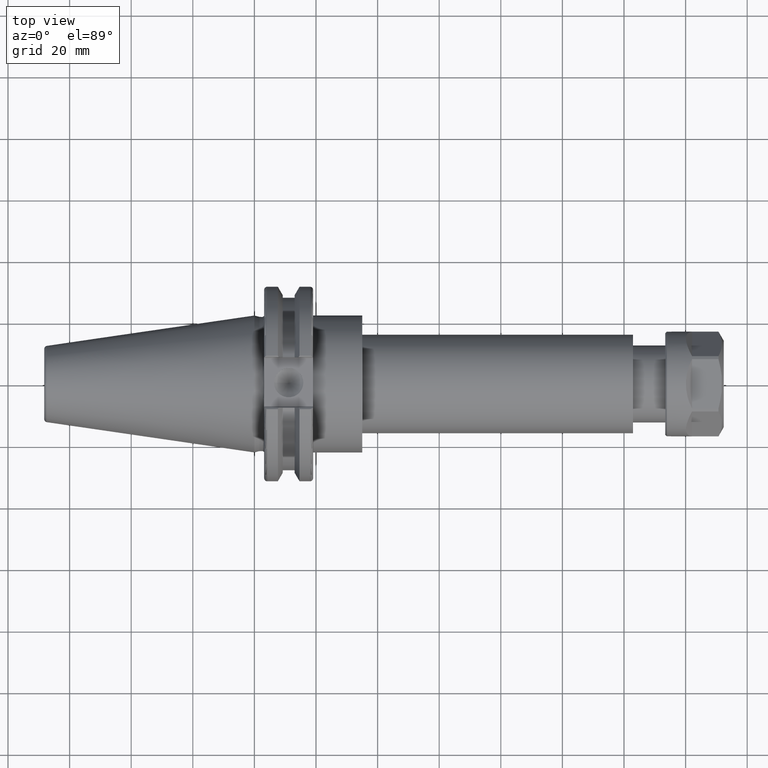
[diagram: clean part render]
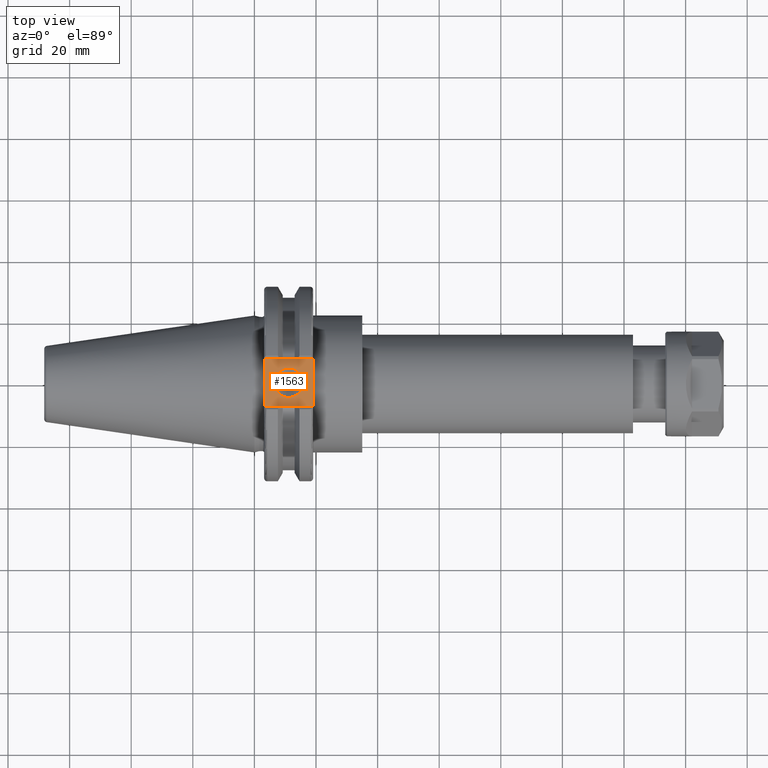
[diagram: same view with one face highlighted and labeled with its STEP entity id]
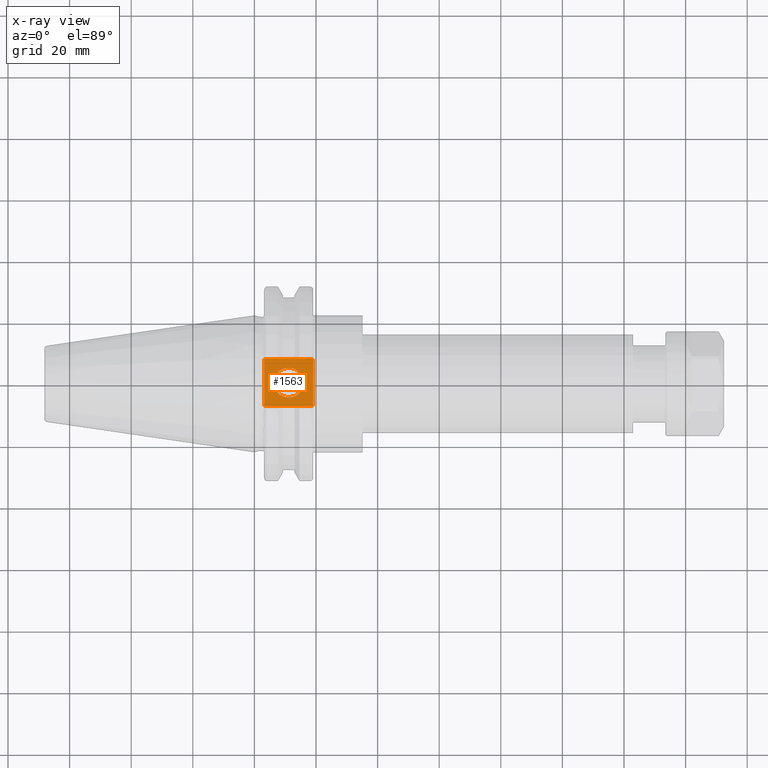
[diagram: x-ray of the same camera — body ghosted, the highlighted face saturated]
A machine part, top view. The second image highlights one B-rep face of the part: STEP entity #1563.
The next image is the same camera in x-ray: the body ghosted, the highlighted face saturated — about 0% of this face is hidden behind the body in this view.
In plain terms, the highlighted planar face has unit normal (0, 0, 1).
Its self-contained STEP definition (entity closure, byte-faithful):
#121=FACE_BOUND('',#350,.T.);
#158=PLANE('',#1778);
#250=FACE_OUTER_BOUND('',#349,.T.);
#349=EDGE_LOOP('',(#1329,#1330,#1331,#1332));
#350=EDGE_LOOP('',(#1333));
#404=LINE('',#2385,#504);
#423=LINE('',#2482,#523);
#448=LINE('',#2670,#548);
#450=LINE('',#2673,#550);
#504=VECTOR('',#1937,10.);
#523=VECTOR('',#1974,10.);
#548=VECTOR('',#2053,10.);
#550=VECTOR('',#2057,10.);
#633=CIRCLE('',#1761,4.7625);
#691=VERTEX_POINT('',#2382);
#692=VERTEX_POINT('',#2384);
#717=VERTEX_POINT('',#2479);
#718=VERTEX_POINT('',#2481);
#768=VERTEX_POINT('',#2730);
#848=EDGE_CURVE('',#691,#692,#404,.T.);
#879=EDGE_CURVE('',#717,#718,#423,.T.);
#933=EDGE_CURVE('',#718,#691,#448,.T.);
#935=EDGE_CURVE('',#692,#717,#450,.T.);
#957=EDGE_CURVE('',#768,#768,#633,.T.);
#1329=ORIENTED_EDGE('',*,*,#933,.F.);
#1330=ORIENTED_EDGE('',*,*,#879,.F.);
#1331=ORIENTED_EDGE('',*,*,#935,.F.);
#1332=ORIENTED_EDGE('',*,*,#848,.F.);
#1333=ORIENTED_EDGE('',*,*,#957,.T.);
#1563=ADVANCED_FACE('',(#250,#121),#158,.T.);
#1761=AXIS2_PLACEMENT_3D('',#2731,#2100,#2101);
#1778=AXIS2_PLACEMENT_3D('',#2749,#2135,#2136);
#1937=DIRECTION('',(0.,1.,0.));
#1974=DIRECTION('',(0.,-1.,0.));
#2053=DIRECTION('',(-1.,1.31581988103722E-16,0.));
#2057=DIRECTION('',(1.,0.,0.));
#2100=DIRECTION('center_axis',(0.,0.,-1.));
#2101=DIRECTION('ref_axis',(1.,0.,0.));
#2135=DIRECTION('center_axis',(0.,0.,1.));
#2136=DIRECTION('ref_axis',(1.,0.,0.));
#2382=CARTESIAN_POINT('',(3.175,-7.68999999999999,25.));
#2384=CARTESIAN_POINT('',(3.175,7.69,25.));
#2385=CARTESIAN_POINT('',(3.175,15.875,25.));
#2479=CARTESIAN_POINT('',(19.05,7.69,25.));
#2481=CARTESIAN_POINT('',(19.05,-7.69,25.));
#2482=CARTESIAN_POINT('',(19.05,0.,25.));
#2670=CARTESIAN_POINT('',(9.44125,-7.69,25.));
#2673=CARTESIAN_POINT('',(17.87875,7.69,25.));
#2730=CARTESIAN_POINT('',(6.3645,-5.83238038093927E-16,25.));
#2731=CARTESIAN_POINT('Origin',(11.127,0.,25.));
#2749=CARTESIAN_POINT('Origin',(15.7075,0.,25.));